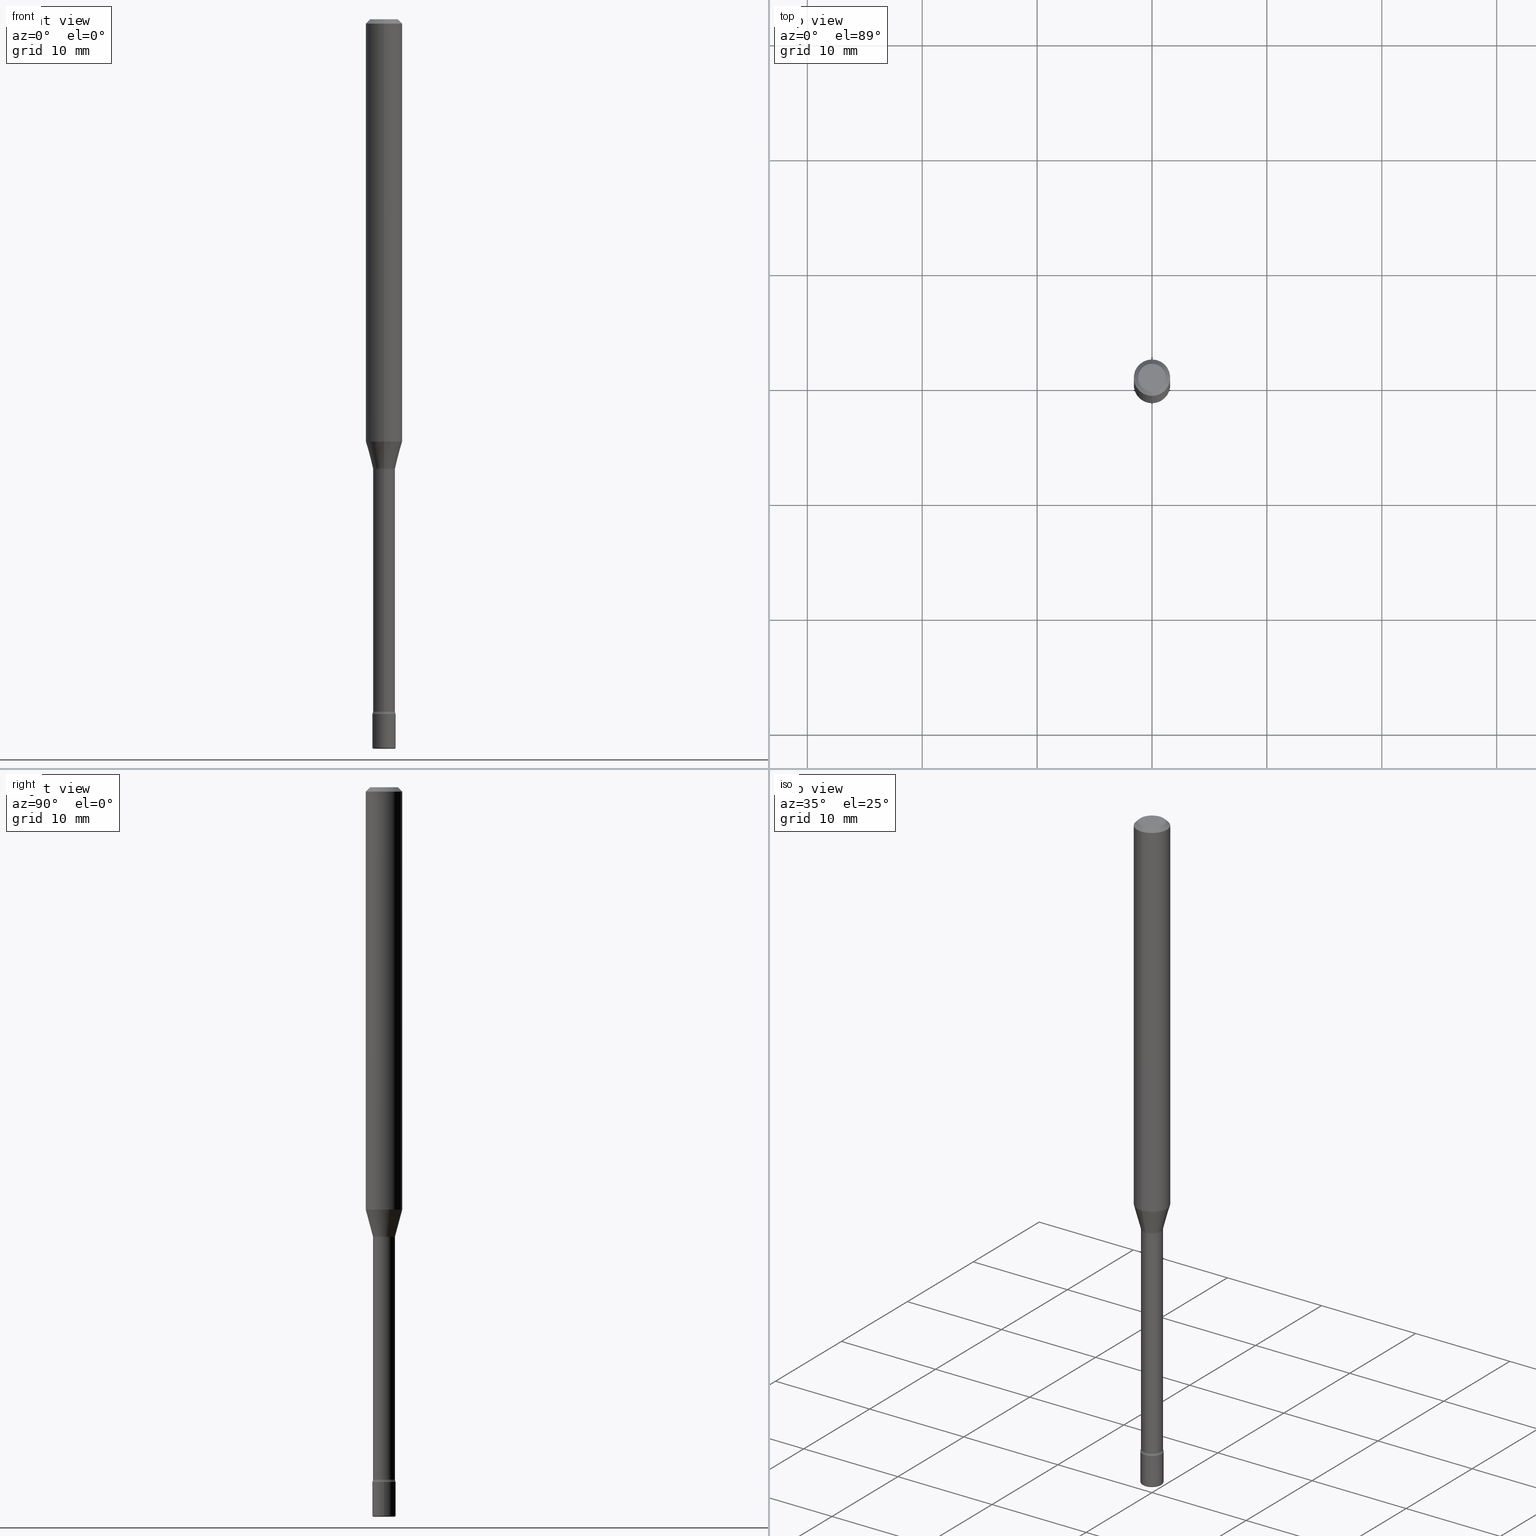
[diagram: canonical four-view strip — front | top / right | iso, engineering-drawing reading convention]
A machine part, canonical four-view strip (front | top / right | iso — engineering-drawing reading convention). The complete STEP part file that produces these views, byte-faithful:
ISO-10303-21;
HEADER;
FILE_DESCRIPTION (( 'STEP AP203' ),
    '1' );
FILE_NAME ('08841.STEP',
    '2024-03-06T20:05:06',
    ( '' ),
    ( '' ),
    'SwSTEP 2.0',
    'SolidWorks 2023',
    '' );
FILE_SCHEMA (( 'CONFIG_CONTROL_DESIGN' ));
ENDSEC;

DATA;
#1 = LOCAL_TIME ( 15, 5, 6.000000000000000000, #359 ) ;
#2 = DIRECTION ( 'NONE',  ( 2.438088387897960049E-29, -3.491481338843145188E-15, -1.000000000000000000 ) ) ;
#3 = ORIENTED_EDGE ( 'NONE', *, *, #93, .F. ) ;
#4 = AXIS2_PLACEMENT_3D ( 'NONE', #111, #146, #17 ) ;
#5 = CIRCLE ( 'NONE', #49, 0.03811111260566397985 ) ;
#6 = CC_DESIGN_SECURITY_CLASSIFICATION ( #23, ( #70 ) ) ;
#7 = DIRECTION ( 'NONE',  ( -2.445371158952634318E-29, 3.491621175237824120E-15, 1.000000000000000000 ) ) ;
#8 = LINE ( 'NONE', #483, #297 ) ;
#9 = DIRECTION ( 'NONE',  ( -2.445371158952634038E-29, 3.491621175237824120E-15, 1.000000000000000000 ) ) ;
#10 = CALENDAR_DATE ( 2024, 6, 3 ) ;
#11 = EDGE_CURVE ( 'NONE', #177, #96, #439, .T. ) ;
#12 = DIRECTION ( 'NONE',  ( 7.105427357601001859E-15, 1.000000000000000000, -3.491481338843145583E-15 ) ) ;
#13 = APPROVAL ( #148, 'UNSPECIFIED' ) ;
#14 = ORIENTED_EDGE ( 'NONE', *, *, #81, .T. ) ;
#15 = AXIS2_PLACEMENT_3D ( 'NONE', #138, #99, #444 ) ;
#16 = AXIS2_PLACEMENT_3D ( 'NONE', #207, #266, #38 ) ;
#17 = DIRECTION ( 'NONE',  ( 1.000000000000000000, -6.982962677686276966E-15, 0.000000000000000000 ) ) ;
#18 = ORIENTED_EDGE ( 'NONE', *, *, #377, .T. ) ;
#19 = CARTESIAN_POINT ( 'NONE',  ( 3.840629472727447874E-16, 0.04750000000000000749, -1.929345507921888929E-16 ) ) ;
#20 = EDGE_LOOP ( 'NONE', ( #423, #118, #354, #522 ) ) ;
#21 = ADVANCED_FACE ( 'NONE', ( #512 ), #149, .F. ) ;
#22 = FACE_OUTER_BOUND ( 'NONE', #420, .T. ) ;
#23 = SECURITY_CLASSIFICATION ( '', '', #408 ) ;
#24 = CC_DESIGN_DATE_AND_TIME_ASSIGNMENT ( #236, #488, ( #23 ) ) ;
#25 = CIRCLE ( 'NONE', #289, 0.04000000000000000083 ) ;
#26 = DIRECTION ( 'NONE',  ( -6.982962677686265922E-15, -1.000000000000000000, 6.829619984160658243E-15 ) ) ;
#27 = ADVANCED_FACE ( 'NONE', ( #569 ), #87, .T. ) ;
#28 = VERTEX_POINT ( 'NONE', #46 ) ;
#29 = AXIS2_PLACEMENT_3D ( 'NONE', #481, #340, #521 ) ;
#30 = AXIS2_PLACEMENT_3D ( 'NONE', #243, #158, #368 ) ;
#31 = ORIENTED_EDGE ( 'NONE', *, *, #267, .F. ) ;
#32 = DIRECTION ( 'NONE',  ( -2.445371158952634318E-29, 3.491621175237824120E-15, 1.000000000000000000 ) ) ;
#33 = ORIENTED_EDGE ( 'NONE', *, *, #468, .F. ) ;
#34 = DIRECTION ( 'NONE',  ( -6.982962677686265922E-15, -1.000000000000000000, 4.370956789862821150E-15 ) ) ;
#35 = ADVANCED_FACE ( 'NONE', ( #345 ), #343, .T. ) ;
#36 = VERTEX_POINT ( 'NONE', #95 ) ;
#37 = ORIENTED_EDGE ( 'NONE', *, *, #471, .T. ) ;
#38 = DIRECTION ( 'NONE',  ( 1.000000000000000000, -6.982962677686265922E-15, 4.876176775795935793E-29 ) ) ;
#39 = DIRECTION ( 'NONE',  ( -2.445371158952634318E-29, 3.491621175237824120E-15, 1.000000000000000000 ) ) ;
#40 = ORIENTED_EDGE ( 'NONE', *, *, #200, .F. ) ;
#41 = PLANE ( 'NONE',  #535 ) ;
#42 = LINE ( 'NONE', #263, #485 ) ;
#43 = ORIENTED_EDGE ( 'NONE', *, *, #182, .F. ) ;
#44 = APPLICATION_PROTOCOL_DEFINITION ( 'international standard', 'config_control_design', 1994, #322 ) ;
#45 = EDGE_CURVE ( 'NONE', #123, #375, #553, .T. ) ;
#46 = CARTESIAN_POINT ( 'NONE',  ( 2.842170943040980615E-16, 0.03999999999999167416, -2.380000000000000338 ) ) ;
#47 = VERTEX_POINT ( 'NONE', #527 ) ;
#48 = CARTESIAN_POINT ( 'NONE',  ( -4.364351673553565651E-16, -0.06250000000000509315, -1.447071934891535072 ) ) ;
#49 = AXIS2_PLACEMENT_3D ( 'NONE', #101, #321, #66 ) ;
#50 = CARTESIAN_POINT ( 'NONE',  ( 5.800312587032241644E-29, -8.281309132162736146E-15, -2.371861204020250025 ) ) ;
#51 = DIRECTION ( 'NONE',  ( 0.000000000000000000, 0.000000000000000000, 1.000000000000000000 ) ) ;
#52 = MANIFOLD_SOLID_BREP ( 'Body-Move/Copy2[2]', #381 ) ;
#53 = CARTESIAN_POINT ( 'NONE',  ( -0.03999999999999989675, -8.427028846109609580E-15, -2.495000000000000107 ) ) ;
#54 = APPROVAL_ROLE ( '' ) ;
#55 = DIRECTION ( 'NONE',  ( 1.839019923739600710E-15, 0.2588190451025250138, 0.9659258262890670910 ) ) ;
#56 = DIRECTION ( 'NONE',  ( -2.445371158952634038E-29, 3.491621175237824120E-15, 1.000000000000000000 ) ) ;
#57 = AXIS2_PLACEMENT_3D ( 'NONE', #104, #231, #186 ) ;
#58 = AXIS2_PLACEMENT_3D ( 'NONE', #550, #32, #34 ) ;
#59 = UNCERTAINTY_MEASURE_WITH_UNIT (LENGTH_MEASURE( 1.000000000000000082E-05 ), #131, 'distance_accuracy_value', 'NONE');
#60 = CARTESIAN_POINT ( 'NONE',  ( -0.03500000000000000333, -8.453521117850718435E-15, -2.499999999999999556 ) ) ;
#61 = ORIENTED_EDGE ( 'NONE', *, *, #385, .T. ) ;
#62 = EDGE_CURVE ( 'NONE', #123, #68, #393, .T. ) ;
#63 = FACE_OUTER_BOUND ( 'NONE', #462, .T. ) ;
#64 = CARTESIAN_POINT ( 'NONE',  ( 5.820215758720625190E-29, -8.309725586446686731E-15, -2.379999999999999893 ) ) ;
#65 = PERSON_AND_ORGANIZATION_ROLE ( 'classification_officer' ) ;
#66 = DIRECTION ( 'NONE',  ( -6.982962677686266711E-15, -1.000000000000000000, 0.000000000000000000 ) ) ;
#67 = DIRECTION ( 'NONE',  ( -6.982962677686265922E-15, -1.000000000000000000, 0.000000000000000000 ) ) ;
#68 = VERTEX_POINT ( 'NONE', #532 ) ;
#69 = LINE ( 'NONE', #279, #318 ) ;
#70 = PRODUCT_DEFINITION_FORMATION_WITH_SPECIFIED_SOURCE ( 'ANY', '', #122, .NOT_KNOWN. ) ;
#71 = VECTOR ( 'NONE', #489, 39.37007874015748143 ) ;
#72 = CONICAL_SURFACE ( 'NONE', #525, 0.06250000000000000000, 0.7853981633974480570 ) ;
#73 = DIRECTION ( 'NONE',  ( -2.445371158952634318E-29, 3.491621175237824120E-15, 1.000000000000000000 ) ) ;
#74 = ORIENTED_EDGE ( 'NONE', *, *, #350, .T. ) ;
#75 = EDGE_CURVE ( 'NONE', #375, #460, #333, .T. ) ;
#76 = DIRECTION ( 'NONE',  ( -6.982962677686266711E-15, -1.000000000000000000, 3.491481338843145583E-15 ) ) ;
#77 = ORIENTED_EDGE ( 'NONE', *, *, #434, .T. ) ;
#78 = AXIS2_PLACEMENT_3D ( 'NONE', #80, #76, #250 ) ;
#79 = ORIENTED_EDGE ( 'NONE', *, *, #350, .F. ) ;
#80 = CARTESIAN_POINT ( 'NONE',  ( 0.03500000000000000333, -8.955649634132666717E-15, -2.495000000000000107 ) ) ;
#81 = EDGE_CURVE ( 'NONE', #416, #499, #502, .T. ) ;
#82 = ORIENTED_EDGE ( 'NONE', *, *, #459, .T. ) ;
#83 = FACE_OUTER_BOUND ( 'NONE', #378, .T. ) ;
#84 = ORIENTED_EDGE ( 'NONE', *, *, #154, .F. ) ;
#85 = CARTESIAN_POINT ( 'NONE',  ( 3.316907271900976589E-16, 0.04750000000000000749, 5.964342113763027116E-17 ) ) ;
#86 = VECTOR ( 'NONE', #55, 39.37007874015748143 ) ;
#87 = CYLINDRICAL_SURFACE ( 'NONE', #555, 0.06250000000000000000 ) ;
#88 = AXIS2_PLACEMENT_3D ( 'NONE', #312, #56, #491 ) ;
#89 = DIRECTION ( 'NONE',  ( -6.982962677686265922E-15, -1.000000000000000000, 3.491621175237824120E-15 ) ) ;
#90 = DIRECTION ( 'NONE',  ( -1.000000000000000000, 6.982962677686265922E-15, -4.883557194083112340E-29 ) ) ;
#91 = ORIENTED_EDGE ( 'NONE', *, *, #463, .F. ) ;
#92 = LINE ( 'NONE', #202, #382 ) ;
#93 = EDGE_CURVE ( 'NONE', #96, #177, #247, .T. ) ;
#94 = APPROVAL_PERSON_ORGANIZATION ( #544, #484, #54 ) ;
#95 = CARTESIAN_POINT ( 'NONE',  ( 4.440892098500982135E-16, 0.06249999999999995143, -0.01500000000000024578 ) ) ;
#96 = VERTEX_POINT ( 'NONE', #221 ) ;
#97 = CARTESIAN_POINT ( 'NONE',  ( 4.364351673553919652E-16, 0.06249999999999995143, -0.01500000000000024578 ) ) ;
#98 = CONICAL_SURFACE ( 'NONE', #57, 0.03811111260566397985, 0.2617993877991502960 ) ;
#99 = DIRECTION ( 'NONE',  ( -2.445371158952634318E-29, 3.491621175237824120E-15, 1.000000000000000000 ) ) ;
#100 = PERSON_AND_ORGANIZATION_ROLE ( 'design_supplier' ) ;
#101 = CARTESIAN_POINT ( 'NONE',  ( 3.761207043671900730E-29, -5.370436348714963355E-15, -1.538092501787273081 ) ) ;
#102 = CARTESIAN_POINT ( 'NONE',  ( 5.820215758720625190E-29, -8.309725586446686731E-15, -2.379999999999999893 ) ) ;
#103 = APPROVAL_DATE_TIME ( #311, #205 ) ;
#104 = CARTESIAN_POINT ( 'NONE',  ( 3.761207043671900730E-29, -5.370436348714963355E-15, -1.538092501787273081 ) ) ;
#105 = PERSON_AND_ORGANIZATION ( #477, #392 ) ;
#106 = CARTESIAN_POINT ( 'NONE',  ( -4.287811248607203282E-16, -0.06250000000000005551, -0.01499999999999981036 ) ) ;
#107 = LOCAL_TIME ( 15, 5, 6.000000000000000000, #187 ) ;
#108 = DIRECTION ( 'NONE',  ( -2.445371158952634318E-29, 3.491621175237824120E-15, 1.000000000000000000 ) ) ;
#109 = ORIENTED_EDGE ( 'NONE', *, *, #237, .T. ) ;
#110 = DATE_TIME_ROLE ( 'creation_date' ) ;
#111 = CARTESIAN_POINT ( 'NONE',  ( 6.113672015462840371E-29, -8.728703347107863365E-15, -2.499999999999999556 ) ) ;
#112 = DIRECTION ( 'NONE',  ( -1.000000000000000000, 6.982962677686265922E-15, -4.883557194083112340E-29 ) ) ;
#113 = ORIENTED_EDGE ( 'NONE', *, *, #385, .F. ) ;
#114 = APPLICATION_CONTEXT ( 'configuration controlled 3d designs of mechanical parts and assemblies' ) ;
#115 = CC_DESIGN_DATE_AND_TIME_ASSIGNMENT ( #275, #110, ( #415 ) ) ;
#116 = AXIS2_PLACEMENT_3D ( 'NONE', #255, #90, #519 ) ;
#117 = AXIS2_PLACEMENT_3D ( 'NONE', #414, #558, #246 ) ;
#118 = ORIENTED_EDGE ( 'NONE', *, *, #425, .T. ) ;
#119 = VERTEX_POINT ( 'NONE', #125 ) ;
#120 = ORIENTED_EDGE ( 'NONE', *, *, #564, .F. ) ;
#121 =( GEOMETRIC_REPRESENTATION_CONTEXT ( 3 ) GLOBAL_UNCERTAINTY_ASSIGNED_CONTEXT ( ( #59 ) ) GLOBAL_UNIT_ASSIGNED_CONTEXT ( ( #131, #388, #523 ) ) REPRESENTATION_CONTEXT ( 'NONE', 'WORKASPACE' ) );
#122 = PRODUCT ( '08841', '08841', '', ( #317 ) ) ;
#123 = VERTEX_POINT ( 'NONE', #473 ) ;
#124 = CARTESIAN_POINT ( 'NONE',  ( 3.668056738428958326E-31, -5.237431762856745967E-17, -0.01500000000000002720 ) ) ;
#125 = CARTESIAN_POINT ( 'NONE',  ( 0.03500000000000000333, -8.973107040826881753E-15, -2.499999999999999556 ) ) ;
#126 = CC_DESIGN_PERSON_AND_ORGANIZATION_ASSIGNMENT ( #398, #65, ( #23 ) ) ;
#127 = ADVANCED_FACE ( 'NONE', ( #300 ), #571, .T. ) ;
#128 = AXIS2_PLACEMENT_3D ( 'NONE', #454, #406, #446 ) ;
#129 = AXIS2_PLACEMENT_3D ( 'NONE', #507, #505, #418 ) ;
#130 = FACE_OUTER_BOUND ( 'NONE', #482, .T. ) ;
#131 =( CONVERSION_BASED_UNIT ( 'INCH', #474 ) LENGTH_UNIT ( ) NAMED_UNIT ( #163 ) );
#132 = DIRECTION ( 'NONE',  ( 1.000000000000000000, -6.982962677686282488E-15, 0.000000000000000000 ) ) ;
#133 = CARTESIAN_POINT ( 'NONE',  ( -0.04000000000000000083, -8.226268669126126415E-15, -2.379999999999999893 ) ) ;
#134 = CARTESIAN_POINT ( 'NONE',  ( 3.668056738428958326E-31, -5.237431762856745967E-17, -0.01500000000000002720 ) ) ;
#135 = ADVANCED_FACE ( 'NONE', ( #130 ), #372, .F. ) ;
#136 = ORIENTED_EDGE ( 'NONE', *, *, #62, .T. ) ;
#137 = FACE_OUTER_BOUND ( 'NONE', #249, .T. ) ;
#138 = CARTESIAN_POINT ( 'NONE',  ( -1.169113584055446105E-44, 1.669184350826100908E-30, 4.780733988912460139E-16 ) ) ;
#139 = APPROVAL_ROLE ( '' ) ;
#140 = AXIS2_PLACEMENT_3D ( 'NONE', #348, #292, #396 ) ;
#141 = ADVANCED_FACE ( 'NONE', ( #395 ), #212, .F. ) ;
#142 = FACE_OUTER_BOUND ( 'NONE', #287, .T. ) ;
#143 = ORIENTED_EDGE ( 'NONE', *, *, #377, .F. ) ;
#144 = DIRECTION ( 'NONE',  ( -2.445371158952634318E-29, 3.491621175237824120E-15, 1.000000000000000000 ) ) ;
#145 = DATE_AND_TIME ( #447, #215 ) ;
#146 = DIRECTION ( 'NONE',  ( -2.445468806185136597E-29, 3.491481338843145583E-15, 1.000000000000000000 ) ) ;
#147 = ORIENTED_EDGE ( 'NONE', *, *, #261, .T. ) ;
#148 = APPROVAL_STATUS ( 'not_yet_approved' ) ;
#149 = TOROIDAL_SURFACE ( 'NONE', #534, 0.05260000000000002174, 0.01499999999999996822 ) ;
#150 = CARTESIAN_POINT ( 'NONE',  ( -3.673038368462397802E-16, -0.05260000000000830678, -2.371861204020249581 ) ) ;
#151 = VERTEX_POINT ( 'NONE', #433 ) ;
#152 = PERSON_AND_ORGANIZATION ( #477, #392 ) ;
#153 = DIRECTION ( 'NONE',  ( -6.982962677686265922E-15, -1.000000000000000000, 3.483106191921935554E-15 ) ) ;
#154 = EDGE_CURVE ( 'NONE', #437, #375, #42, .T. ) ;
#155 = ORIENTED_EDGE ( 'NONE', *, *, #561, .F. ) ;
#156 = AXIS2_PLACEMENT_3D ( 'NONE', #64, #356, #235 ) ;
#157 = ORIENTED_EDGE ( 'NONE', *, *, #455, .F. ) ;
#158 = DIRECTION ( 'NONE',  ( -2.445371158952634318E-29, 3.491621175237824120E-15, 1.000000000000000000 ) ) ;
#159 = ADVANCED_FACE ( 'NONE', ( #174 ), #487, .T. ) ;
#160 = ORIENTED_EDGE ( 'NONE', *, *, #455, .T. ) ;
#161 = CARTESIAN_POINT ( 'NONE',  ( 5.820215758720625190E-29, -8.309725586446686731E-15, -2.379999999999999893 ) ) ;
#162 = DIRECTION ( 'NONE',  ( -2.445468806185136597E-29, 3.491481338843145583E-15, 1.000000000000000000 ) ) ;
#163 = DIMENSIONAL_EXPONENTS ( 1.000000000000000000, 0.000000000000000000, 0.000000000000000000, 0.000000000000000000, 0.000000000000000000, 0.000000000000000000, 0.000000000000000000 ) ;
#164 = AXIS2_PLACEMENT_3D ( 'NONE', #217, #342, #438 ) ;
#165 = ORIENTED_EDGE ( 'NONE', *, *, #75, .F. ) ;
#166 = DIRECTION ( 'NONE',  ( -2.445371158952634318E-29, 3.491621175237824120E-15, 1.000000000000000000 ) ) ;
#167 = DIRECTION ( 'NONE',  ( 6.982962677686265922E-15, 1.000000000000000000, -3.483106191921935554E-15 ) ) ;
#168 = DIRECTION ( 'NONE',  ( 2.445371158952634318E-29, -3.491621175237824120E-15, -1.000000000000000000 ) ) ;
#169 = CARTESIAN_POINT ( 'NONE',  ( 6.101444671431915719E-29, -8.711245940413648329E-15, -2.495000000000000107 ) ) ;
#170 = ORIENTED_EDGE ( 'NONE', *, *, #81, .F. ) ;
#171 = AXIS2_PLACEMENT_3D ( 'NONE', #150, #112, #543 ) ;
#172 = CARTESIAN_POINT ( 'NONE',  ( 3.538627974513544644E-29, -5.052627009959655256E-15, -1.447071934891535294 ) ) ;
#173 = ADVANCED_FACE ( 'NONE', ( #347 ), #349, .T. ) ;
#174 = FACE_OUTER_BOUND ( 'NONE', #467, .T. ) ;
#175 = FACE_OUTER_BOUND ( 'NONE', #329, .T. ) ;
#176 = DIRECTION ( 'NONE',  ( -1.000000000000000000, 6.982962677686265922E-15, -4.876176775795935793E-29 ) ) ;
#177 = VERTEX_POINT ( 'NONE', #53 ) ;
#178 = COORDINATED_UNIVERSAL_TIME_OFFSET ( 5, 0, .BEHIND. ) ;
#179 = CARTESIAN_POINT ( 'NONE',  ( -4.364351673553916201E-16, -0.06250000000000000000, 6.962997223436100461E-16 ) ) ;
#180 = AXIS2_PLACEMENT_3D ( 'NONE', #386, #389, #478 ) ;
#181 = CONICAL_SURFACE ( 'NONE', #30, 0.03811111260566397985, 0.2617993877991502960 ) ;
#182 = EDGE_CURVE ( 'NONE', #219, #437, #238, .T. ) ;
#183 = CARTESIAN_POINT ( 'NONE',  ( 2.707957421369348639E-16, 0.03811111260565861608, -1.538092501787273081 ) ) ;
#184 = DIRECTION ( 'NONE',  ( -2.445371158952634318E-29, 3.491621175237824120E-15, 1.000000000000000000 ) ) ;
#185 = CALENDAR_DATE ( 2024, 6, 3 ) ;
#186 = DIRECTION ( 'NONE',  ( -6.982962677686266711E-15, -1.000000000000000000, 0.000000000000000000 ) ) ;
#187 = COORDINATED_UNIVERSAL_TIME_OFFSET ( 5, 0, .BEHIND. ) ;
#188 = AXIS2_PLACEMENT_3D ( 'NONE', #562, #162, #332 ) ;
#189 = VECTOR ( 'NONE', #449, 39.37007874015748143 ) ;
#190 = LOCAL_TIME ( 15, 5, 6.000000000000000000, #178 ) ;
#191 = CARTESIAN_POINT ( 'NONE',  ( -2.625593966809659350E-16, -0.03760000000000538606, -1.541974787463811003 ) ) ;
#192 = CYLINDRICAL_SURFACE ( 'NONE', #458, 0.03760000000000002923 ) ;
#193 = ORIENTED_EDGE ( 'NONE', *, *, #240, .T. ) ;
#194 = CIRCLE ( 'NONE', #171, 0.01499999999999996822 ) ;
#195 = EDGE_CURVE ( 'NONE', #96, #151, #316, .T. ) ;
#196 = CIRCLE ( 'NONE', #204, 0.04000000000000000083 ) ;
#197 = ORIENTED_EDGE ( 'NONE', *, *, #367, .F. ) ;
#198 = CARTESIAN_POINT ( 'NONE',  ( 3.668056738428958326E-31, -5.237431762856745967E-17, -0.01500000000000002720 ) ) ;
#199 = ORIENTED_EDGE ( 'NONE', *, *, #11, .T. ) ;
#200 = EDGE_CURVE ( 'NONE', #68, #416, #498, .T. ) ;
#201 = VERTEX_POINT ( 'NONE', #19 ) ;
#202 = CARTESIAN_POINT ( 'NONE',  ( -0.04000000000000000083, 2.842170943040400803E-16, -1.967574036101962509E-30 ) ) ;
#203 = CLOSED_SHELL ( 'NONE', ( #508, #305, #331, #159, #549, #127 ) ) ;
#204 = AXIS2_PLACEMENT_3D ( 'NONE', #362, #320, #26 ) ;
#205 = APPROVAL ( #452, 'UNSPECIFIED' ) ;
#206 = EDGE_LOOP ( 'NONE', ( #113, #193, #18, #504 ) ) ;
#207 = CARTESIAN_POINT ( 'NONE',  ( 0.000000000000000000, 0.000000000000000000, 0.000000000000000000 ) ) ;
#208 = DIRECTION ( 'NONE',  ( 2.445371158952634318E-29, -3.491621175237824120E-15, -1.000000000000000000 ) ) ;
#209 = ORIENTED_EDGE ( 'NONE', *, *, #394, .T. ) ;
#210 =( LENGTH_UNIT ( ) NAMED_UNIT ( * ) SI_UNIT ( $, .METRE. ) );
#211 = CARTESIAN_POINT ( 'NONE',  ( 2.444036937190804617E-16, 0.03499999999999127420, -2.500000000000000000 ) ) ;
#212 = TOROIDAL_SURFACE ( 'NONE', #411, 0.05260000000000002174, 0.01499999999999996822 ) ;
#213 = AXIS2_PLACEMENT_3D ( 'NONE', #548, #500, #283 ) ;
#214 = DIRECTION ( 'NONE',  ( -6.982962677686265922E-15, -1.000000000000000000, 3.491621175237824120E-15 ) ) ;
#215 = LOCAL_TIME ( 15, 5, 6.000000000000000000, #496 ) ;
#216 = ORIENTED_EDGE ( 'NONE', *, *, #461, .F. ) ;
#217 = CARTESIAN_POINT ( 'NONE',  ( 5.819983358307269654E-29, -8.310058397066021462E-15, -2.379999999999999893 ) ) ;
#218 = DIRECTION ( 'NONE',  ( -2.445371158952634318E-29, 3.491621175237824120E-15, 1.000000000000000000 ) ) ;
#219 = VERTEX_POINT ( 'NONE', #353 ) ;
#220 = APPLICATION_PROTOCOL_DEFINITION ( 'international standard', 'config_control_design', 1994, #114 ) ;
#221 = CARTESIAN_POINT ( 'NONE',  ( 0.03999999999999989675, -8.990564447521098367E-15, -2.495000000000000107 ) ) ;
#222 = APPROVAL_DATE_TIME ( #443, #484 ) ;
#223 = EDGE_CURVE ( 'NONE', #506, #36, #565, .T. ) ;
#224 = DIRECTION ( 'NONE',  ( -2.445371158952634038E-29, 3.491621175237824120E-15, 1.000000000000000000 ) ) ;
#225 = CYLINDRICAL_SURFACE ( 'NONE', #556, 0.06250000000000000000 ) ;
#226 = CC_DESIGN_PERSON_AND_ORGANIZATION_ASSIGNMENT ( #227, #100, ( #70 ) ) ;
#227 = PERSON_AND_ORGANIZATION ( #477, #392 ) ;
#228 = AXIS2_PLACEMENT_3D ( 'NONE', #495, #12, #270 ) ;
#229 = CIRCLE ( 'NONE', #352, 0.03760000000000005699 ) ;
#230 = EDGE_CURVE ( 'NONE', #528, #151, #401, .T. ) ;
#231 = DIRECTION ( 'NONE',  ( -2.445371158952634318E-29, 3.491621175237824120E-15, 1.000000000000000000 ) ) ;
#232 = APPROVAL_STATUS ( 'not_yet_approved' ) ;
#233 = ORIENTED_EDGE ( 'NONE', *, *, #427, .F. ) ;
#234 = DIRECTION ( 'NONE',  ( -4.851104656540962697E-15, -0.7071067811865497932, -0.7071067811865452413 ) ) ;
#235 = DIRECTION ( 'NONE',  ( 1.000000000000000000, -6.982962677686265922E-15, 4.876176775795935793E-29 ) ) ;
#236 = DATE_AND_TIME ( #314, #1 ) ;
#237 = EDGE_CURVE ( 'NONE', #310, #177, #419, .T. ) ;
#238 = CIRCLE ( 'NONE', #325, 0.03760000000000005699 ) ;
#239 = APPROVAL_PERSON_ORGANIZATION ( #351, #13, #139 ) ;
#240 = EDGE_CURVE ( 'NONE', #68, #460, #524, .T. ) ;
#241 = ORIENTED_EDGE ( 'NONE', *, *, #459, .F. ) ;
#242 = ORIENTED_EDGE ( 'NONE', *, *, #45, .T. ) ;
#243 = CARTESIAN_POINT ( 'NONE',  ( 3.761207043671900730E-29, -5.370436348714963355E-15, -1.538092501787273081 ) ) ;
#244 = MANIFOLD_SOLID_BREP ( 'Body-Move/Copy2[1]', #203 ) ;
#245 = ORIENTED_EDGE ( 'NONE', *, *, #200, .T. ) ;
#246 = DIRECTION ( 'NONE',  ( 1.000000000000000000, -6.982962677686276966E-15, 0.000000000000000000 ) ) ;
#247 = CIRCLE ( 'NONE', #295, 0.04000000000000000777 ) ;
#248 = AXIS2_PLACEMENT_3D ( 'NONE', #457, #73, #399 ) ;
#249 = EDGE_LOOP ( 'NONE', ( #82, #566 ) ) ;
#250 = DIRECTION ( 'NONE',  ( 1.000000000000000000, -6.982962677686451304E-15, 0.000000000000000000 ) ) ;
#251 = ORIENTED_EDGE ( 'NONE', *, *, #520, .T. ) ;
#252 = ORIENTED_EDGE ( 'NONE', *, *, #237, .F. ) ;
#253 = DIRECTION ( 'NONE',  ( -1.807323732225330534E-15, -0.2588190451025182415, 0.9659258262890689783 ) ) ;
#254 = AXIS2_PLACEMENT_3D ( 'NONE', #172, #441, #337 ) ;
#255 = CARTESIAN_POINT ( 'NONE',  ( -3.673038368462599455E-16, -0.05260000000000539244, -1.541974787463810781 ) ) ;
#256 = FACE_OUTER_BOUND ( 'NONE', #20, .T. ) ;
#257 = DIRECTION ( 'NONE',  ( -2.445371158952634318E-29, 3.491621175237824120E-15, 1.000000000000000000 ) ) ;
#258 = CARTESIAN_POINT ( 'NONE',  ( 3.761207043671900730E-29, -5.370436348714963355E-15, -1.538092501787273081 ) ) ;
#259 = ORIENTED_EDGE ( 'NONE', *, *, #425, .F. ) ;
#260 = DIRECTION ( 'NONE',  ( -2.445468806185136877E-29, 3.491481338843145188E-15, 1.000000000000000000 ) ) ;
#261 = EDGE_CURVE ( 'NONE', #437, #47, #194, .T. ) ;
#262 = CIRCLE ( 'NONE', #117, 0.03500000000000000333 ) ;
#263 = CARTESIAN_POINT ( 'NONE',  ( -2.625593966810038003E-16, -0.03760000000000002923, 6.093583550801884071E-16 ) ) ;
#264 = CC_DESIGN_APPROVAL ( #484, ( #23 ) ) ;
#265 = EDGE_LOOP ( 'NONE', ( #259, #241, #299, #285 ) ) ;
#266 = DIRECTION ( 'NONE',  ( -2.445468806185136597E-29, 3.491481338843145583E-15, 1.000000000000000000 ) ) ;
#267 = EDGE_CURVE ( 'NONE', #310, #119, #494, .T. ) ;
#268 = CARTESIAN_POINT ( 'NONE',  ( -1.169113584055446105E-44, 1.669184350826100908E-30, 4.780733988912460139E-16 ) ) ;
#269 = COORDINATED_UNIVERSAL_TIME_OFFSET ( 5, 0, .BEHIND. ) ;
#270 = DIRECTION ( 'NONE',  ( -1.000000000000000000, 7.105427357601049190E-15, 0.000000000000000000 ) ) ;
#271 = ORIENTED_EDGE ( 'NONE', *, *, #564, .T. ) ;
#272 = CARTESIAN_POINT ( 'NONE',  ( 4.440892098500976219E-16, 0.06249999999999491379, -1.447071934891535516 ) ) ;
#273 = AXIS2_PLACEMENT_3D ( 'NONE', #134, #208, #167 ) ;
#274 = CARTESIAN_POINT ( 'NONE',  ( 0.04000000000000000083, -2.793185071074506290E-16, 1.950470710318374387E-30 ) ) ;
#275 = DATE_AND_TIME ( #185, #276 ) ;
#276 = LOCAL_TIME ( 15, 5, 6.000000000000000000, #269 ) ;
#277 = DIRECTION ( 'NONE',  ( -6.982962677686265922E-15, -1.000000000000000000, 3.491621175237823726E-15 ) ) ;
#278 = APPROVAL_ROLE ( '' ) ;
#279 = CARTESIAN_POINT ( 'NONE',  ( 2.671640686457978776E-16, 0.03760000000000002923, 3.467884427023037687E-16 ) ) ;
#280 = DIRECTION ( 'NONE',  ( -2.445468806185136597E-29, 3.491481338843145583E-15, 1.000000000000000000 ) ) ;
#281 = ORIENTED_EDGE ( 'NONE', *, *, #427, .T. ) ;
#282 = ADVANCED_FACE ( 'NONE', ( #142 ), #225, .T. ) ;
#283 = DIRECTION ( 'NONE',  ( -6.982962677686265922E-15, -1.000000000000000000, 0.000000000000000000 ) ) ;
#284 = AXIS2_PLACEMENT_3D ( 'NONE', #391, #166, #346 ) ;
#285 = ORIENTED_EDGE ( 'NONE', *, *, #463, .T. ) ;
#286 = ORIENTED_EDGE ( 'NONE', *, *, #75, .T. ) ;
#287 = EDGE_LOOP ( 'NONE', ( #516, #14, #74, #91 ) ) ;
#288 = CARTESIAN_POINT ( 'NONE',  ( -1.169113584055446105E-44, 1.669184350826100908E-30, 4.780733988912460139E-16 ) ) ;
#289 = AXIS2_PLACEMENT_3D ( 'NONE', #161, #330, #517 ) ;
#290 = EDGE_LOOP ( 'NONE', ( #252, #303, #77, #291 ) ) ;
#291 = ORIENTED_EDGE ( 'NONE', *, *, #11, .F. ) ;
#292 = DIRECTION ( 'NONE',  ( -2.445468806185136597E-29, 3.491481338843145583E-15, 1.000000000000000000 ) ) ;
#293 = DIRECTION ( 'NONE',  ( -2.445371158952634318E-29, 3.491621175237824120E-15, 1.000000000000000000 ) ) ;
#294 = LINE ( 'NONE', #97, #364 ) ;
#295 = AXIS2_PLACEMENT_3D ( 'NONE', #169, #530, #132 ) ;
#296 = TOROIDAL_SURFACE ( 'NONE', #334, 0.03500000000000000333, 0.004999999999999771988 ) ;
#297 = VECTOR ( 'NONE', #253, 39.37007874015748143 ) ;
#298 = CARTESIAN_POINT ( 'NONE',  ( 3.770851242666705328E-29, -5.383776195396521708E-15, -1.541974787463811003 ) ) ;
#299 = ORIENTED_EDGE ( 'NONE', *, *, #570, .T. ) ;
#300 = FACE_OUTER_BOUND ( 'NONE', #464, .T. ) ;
#301 = DIRECTION ( 'NONE',  ( 6.982962677686265922E-15, 1.000000000000000000, -3.491621175237824120E-15 ) ) ;
#302 = DIRECTION ( 'NONE',  ( -6.982962677686265922E-15, -1.000000000000000000, 3.491621175237823726E-15 ) ) ;
#303 = ORIENTED_EDGE ( 'NONE', *, *, #267, .T. ) ;
#304 = CARTESIAN_POINT ( 'NONE',  ( 5.800080981349790489E-29, -8.281640804682186145E-15, -2.371861204020250025 ) ) ;
#305 = ADVANCED_FACE ( 'NONE', ( #451 ), #296, .T. ) ;
#306 = CIRCLE ( 'NONE', #164, 0.04000000000000000083 ) ;
#307 = CARTESIAN_POINT ( 'NONE',  ( 5.800312587032241644E-29, -8.281309132162736146E-15, -2.371861204020250025 ) ) ;
#308 = APPROVAL_DATE_TIME ( #145, #13 ) ;
#309 = CARTESIAN_POINT ( 'NONE',  ( -1.169113584055446105E-44, 1.669184350826100908E-30, 4.780733988912460139E-16 ) ) ;
#310 = VERTEX_POINT ( 'NONE', #60 ) ;
#311 = DATE_AND_TIME ( #10, #190 ) ;
#312 = CARTESIAN_POINT ( 'NONE',  ( 2.793185071075088075E-16, 0.03999999999999169498, -2.380000000000000338 ) ) ;
#313 = CARTESIAN_POINT ( 'NONE',  ( 5.800080981349790489E-29, -8.281640804682186145E-15, -2.371861204020250025 ) ) ;
#314 = CALENDAR_DATE ( 2024, 6, 3 ) ;
#315 = AXIS2_PLACEMENT_3D ( 'NONE', #298, #436, #214 ) ;
#316 = LINE ( 'NONE', #274, #71 ) ;
#317 = MECHANICAL_CONTEXT ( 'NONE', #322, 'mechanical' ) ;
#318 = VECTOR ( 'NONE', #224, 39.37007874015748143 ) ;
#319 = CARTESIAN_POINT ( 'NONE',  ( -3.773273898774340269E-16, -0.04750000000000000749, 1.387694608554044370E-16 ) ) ;
#320 = DIRECTION ( 'NONE',  ( -2.445371158952634318E-29, 3.491621175237824120E-15, 1.000000000000000000 ) ) ;
#321 = DIRECTION ( 'NONE',  ( -2.445371158952634318E-29, 3.491621175237824120E-15, 1.000000000000000000 ) ) ;
#322 = APPLICATION_CONTEXT ( 'configuration controlled 3d designs of mechanical parts and assemblies' ) ;
#323 = DIRECTION ( 'NONE',  ( 1.000000000000000000, -6.982962677686274599E-15, 4.883557194083115143E-29 ) ) ;
#324 = EDGE_LOOP ( 'NONE', ( #537, #557, #380, #143 ) ) ;
#325 = AXIS2_PLACEMENT_3D ( 'NONE', #313, #108, #67 ) ;
#326 = CARTESIAN_POINT ( 'NONE',  ( 3.737454790098707842E-16, 0.05259999999999174364, -2.371861204020250025 ) ) ;
#327 = CIRCLE ( 'NONE', #248, 0.04750000000000000749 ) ;
#328 = ORIENTED_EDGE ( 'NONE', *, *, #367, .T. ) ;
#329 = EDGE_LOOP ( 'NONE', ( #442, #251, #33, #383 ) ) ;
#330 = DIRECTION ( 'NONE',  ( -2.445468806185136597E-29, 3.491481338843145583E-15, 1.000000000000000000 ) ) ;
#331 = ADVANCED_FACE ( 'NONE', ( #366 ), #536, .T. ) ;
#332 = DIRECTION ( 'NONE',  ( 1.000000000000000000, -6.982962677686282488E-15, 0.000000000000000000 ) ) ;
#333 = CIRCLE ( 'NONE', #180, 0.03760000000000000842 ) ;
#334 = AXIS2_PLACEMENT_3D ( 'NONE', #403, #280, #323 ) ;
#335 = ORIENTED_EDGE ( 'NONE', *, *, #62, .F. ) ;
#336 = DIRECTION ( 'NONE',  ( -6.982962677686265922E-15, -1.000000000000000000, 0.000000000000000000 ) ) ;
#337 = DIRECTION ( 'NONE',  ( -6.982962677686265922E-15, -1.000000000000000000, 4.370956789862821150E-15 ) ) ;
#338 = DIRECTION ( 'NONE',  ( 6.982962677686265922E-15, 1.000000000000000000, -3.483106191921935554E-15 ) ) ;
#339 = EDGE_CURVE ( 'NONE', #416, #36, #541, .T. ) ;
#340 = DIRECTION ( 'NONE',  ( -2.445468806185136597E-29, 3.491481338843145583E-15, 1.000000000000000000 ) ) ;
#341 = EDGE_LOOP ( 'NONE', ( #390, #209, #165, #84 ) ) ;
#342 = DIRECTION ( 'NONE',  ( -2.445371158952634318E-29, 3.491621175237824120E-15, 1.000000000000000000 ) ) ;
#343 = CONICAL_SURFACE ( 'NONE', #273, 0.06250000000000000000, 0.7853981633974480570 ) ;
#344 = CIRCLE ( 'NONE', #58, 0.06250000000000000000 ) ;
#345 = FACE_OUTER_BOUND ( 'NONE', #265, .T. ) ;
#346 = DIRECTION ( 'NONE',  ( -6.982962677686265922E-15, -1.000000000000000000, 3.491621175237824120E-15 ) ) ;
#347 = FACE_OUTER_BOUND ( 'NONE', #341, .T. ) ;
#348 = CARTESIAN_POINT ( 'NONE',  ( 6.101444671431915719E-29, -8.711245940413648329E-15, -2.495000000000000107 ) ) ;
#349 = CYLINDRICAL_SURFACE ( 'NONE', #15, 0.03760000000000002923 ) ;
#350 = EDGE_CURVE ( 'NONE', #499, #506, #409, .T. ) ;
#351 = PERSON_AND_ORGANIZATION ( #477, #392 ) ;
#352 = AXIS2_PLACEMENT_3D ( 'NONE', #304, #257, #336 ) ;
#353 = CARTESIAN_POINT ( 'NONE',  ( 2.756905814749770095E-16, 0.03759999999999177195, -2.371861204020250025 ) ) ;
#354 = ORIENTED_EDGE ( 'NONE', *, *, #223, .T. ) ;
#355 = PERSON_AND_ORGANIZATION_ROLE ( 'design_owner' ) ;
#356 = DIRECTION ( 'NONE',  ( -2.438088387897960049E-29, 3.491481338843145188E-15, 1.000000000000000000 ) ) ;
#357 = PERSON_AND_ORGANIZATION ( #477, #392 ) ;
#358 = DIRECTION ( 'NONE',  ( 1.000000000000000000, -6.982962677686259611E-15, 0.000000000000000000 ) ) ;
#359 = COORDINATED_UNIVERSAL_TIME_OFFSET ( 5, 0, .BEHIND. ) ;
#360 = ADVANCED_FACE ( 'NONE', ( #22 ), #98, .T. ) ;
#361 = AXIS2_PLACEMENT_3D ( 'NONE', #258, #218, #431 ) ;
#362 = CARTESIAN_POINT ( 'NONE',  ( 5.819983358307269654E-29, -8.310058397066021462E-15, -2.379999999999999893 ) ) ;
#363 = SHAPE_DEFINITION_REPRESENTATION ( #435, #405 ) ;
#364 = VECTOR ( 'NONE', #429, 39.37007874015748143 ) ;
#365 = ORIENTED_EDGE ( 'NONE', *, *, #471, .F. ) ;
#366 = FACE_OUTER_BOUND ( 'NONE', #369, .T. ) ;
#367 = EDGE_CURVE ( 'NONE', #28, #47, #196, .T. ) ;
#368 = DIRECTION ( 'NONE',  ( -6.982962677686266711E-15, -1.000000000000000000, 0.000000000000000000 ) ) ;
#369 = EDGE_LOOP ( 'NONE', ( #572, #387 ) ) ;
#370 = CC_DESIGN_PERSON_AND_ORGANIZATION_ASSIGNMENT ( #152, #445, ( #70 ) ) ;
#371 = DIRECTION ( 'NONE',  ( -2.445371158952634318E-29, 3.491621175237824120E-15, 1.000000000000000000 ) ) ;
#372 = TOROIDAL_SURFACE ( 'NONE', #315, 0.05260000000000000786, 0.01500000000000002720 ) ;
#373 = ORIENTED_EDGE ( 'NONE', *, *, #461, .T. ) ;
#374 = CIRCLE ( 'NONE', #129, 0.04750000000000000749 ) ;
#375 = VERTEX_POINT ( 'NONE', #191 ) ;
#376 = DIRECTION ( 'NONE',  ( -2.445371158952634318E-29, 3.491621175237824120E-15, 1.000000000000000000 ) ) ;
#377 = EDGE_CURVE ( 'NONE', #460, #375, #513, .T. ) ;
#378 = EDGE_LOOP ( 'NONE', ( #136, #245, #216, #120 ) ) ;
#379 = EDGE_CURVE ( 'NONE', #426, #201, #327, .T. ) ;
#380 = ORIENTED_EDGE ( 'NONE', *, *, #154, .T. ) ;
#381 = CLOSED_SHELL ( 'NONE', ( #515, #173, #141, #497, #27, #453, #360, #282, #35, #552, #417, #21, #450, #135 ) ) ;
#382 = VECTOR ( 'NONE', #260, 39.37007874015748143 ) ;
#383 = ORIENTED_EDGE ( 'NONE', *, *, #195, .F. ) ;
#384 = DIRECTION ( 'NONE',  ( 2.445371158952634038E-29, -3.491621175237824120E-15, -1.000000000000000000 ) ) ;
#385 = EDGE_CURVE ( 'NONE', #68, #123, #5, .T. ) ;
#386 = CARTESIAN_POINT ( 'NONE',  ( 3.770700673096121147E-29, -5.383991819591485043E-15, -1.541974787463811003 ) ) ;
#387 = ORIENTED_EDGE ( 'NONE', *, *, #230, .T. ) ;
#388 =( NAMED_UNIT ( * ) PLANE_ANGLE_UNIT ( ) SI_UNIT ( $, .RADIAN. ) );
#389 = DIRECTION ( 'NONE',  ( -2.445371158952634318E-29, 3.491621175237824120E-15, 1.000000000000000000 ) ) ;
#390 = ORIENTED_EDGE ( 'NONE', *, *, #561, .T. ) ;
#391 = CARTESIAN_POINT ( 'NONE',  ( 3.770851242666705328E-29, -5.383776195396521708E-15, -1.541974787463811003 ) ) ;
#392 = ORGANIZATION ( 'UNSPECIFIED', 'UNSPECIFIED', '' ) ;
#393 = CIRCLE ( 'NONE', #361, 0.03811111260566397985 ) ;
#394 = EDGE_CURVE ( 'NONE', #219, #460, #69, .T. ) ;
#395 = FACE_OUTER_BOUND ( 'NONE', #407, .T. ) ;
#396 = DIRECTION ( 'NONE',  ( 1.000000000000000000, -6.982962677686274599E-15, 4.883557194083115143E-29 ) ) ;
#397 = DIRECTION ( 'NONE',  ( -6.982962677686265922E-15, -1.000000000000000000, 3.491621175237824120E-15 ) ) ;
#398 = PERSON_AND_ORGANIZATION ( #477, #392 ) ;
#399 = DIRECTION ( 'NONE',  ( -6.982962677686265133E-15, -1.000000000000000000, 3.491621175237824120E-15 ) ) ;
#400 = DIRECTION ( 'NONE',  ( -2.445468806185136597E-29, 3.491481338843145583E-15, 1.000000000000000000 ) ) ;
#401 = CIRCLE ( 'NONE', #475, 0.04000000000000000083 ) ;
#402 = CIRCLE ( 'NONE', #546, 0.06250000000000000000 ) ;
#403 = CARTESIAN_POINT ( 'NONE',  ( 6.101444671431915719E-29, -8.711245940413648329E-15, -2.495000000000000107 ) ) ;
#404 = DIRECTION ( 'NONE',  ( 1.000000000000000000, 0.000000000000000000, 0.000000000000000000 ) ) ;
#405 = ADVANCED_BREP_SHAPE_REPRESENTATION ( '08841', ( #244, #52, #465 ), #121 ) ;
#406 = DIRECTION ( 'NONE',  ( 1.000000000000000000, -7.105427357601001070E-15, 4.926317221044013768E-29 ) ) ;
#407 = EDGE_LOOP ( 'NONE', ( #43, #160, #328, #560 ) ) ;
#408 = SECURITY_CLASSIFICATION_LEVEL ( 'unclassified' ) ;
#409 = LINE ( 'NONE', #179, #189 ) ;
#410 = PERSON_AND_ORGANIZATION ( #477, #392 ) ;
#411 = AXIS2_PLACEMENT_3D ( 'NONE', #50, #7, #397 ) ;
#412 = DIRECTION ( 'NONE',  ( -2.445371158952634038E-29, 3.491621175237824120E-15, 1.000000000000000000 ) ) ;
#413 = CIRCLE ( 'NONE', #448, 0.01499999999999996822 ) ;
#414 = CARTESIAN_POINT ( 'NONE',  ( 6.113672015462840371E-29, -8.728703347107863365E-15, -2.499999999999999556 ) ) ;
#415 = PRODUCT_DEFINITION ( 'UNKNOWN', '', #70, #472 ) ;
#416 = VERTEX_POINT ( 'NONE', #272 ) ;
#417 = ADVANCED_FACE ( 'NONE', ( #63 ), #539, .F. ) ;
#418 = DIRECTION ( 'NONE',  ( -6.982962677686265133E-15, -1.000000000000000000, 3.491621175237824120E-15 ) ) ;
#419 = CIRCLE ( 'NONE', #228, 0.004999999999999776325 ) ;
#420 = EDGE_LOOP ( 'NONE', ( #40, #61, #271, #170 ) ) ;
#421 = CARTESIAN_POINT ( 'NONE',  ( 2.671640686458558589E-16, 0.03759999999999461689, -1.541974787463811003 ) ) ;
#422 = EDGE_LOOP ( 'NONE', ( #281, #109, #3, #501 ) ) ;
#423 = ORIENTED_EDGE ( 'NONE', *, *, #379, .F. ) ;
#424 = DIRECTION ( 'NONE',  ( 7.105427357601001859E-15, 1.000000000000000000, 0.000000000000000000 ) ) ;
#425 = EDGE_CURVE ( 'NONE', #426, #506, #493, .T. ) ;
#426 = VERTEX_POINT ( 'NONE', #319 ) ;
#427 = EDGE_CURVE ( 'NONE', #119, #310, #262, .T. ) ;
#428 = EDGE_LOOP ( 'NONE', ( #157, #155, #147, #37 ) ) ;
#429 = DIRECTION ( 'NONE',  ( 4.937700262164546464E-15, 0.7071067811865449082, -0.7071067811865501263 ) ) ;
#430 = CIRCLE ( 'NONE', #78, 0.004999999999999776325 ) ;
#431 = DIRECTION ( 'NONE',  ( -6.982962677686266711E-15, -1.000000000000000000, 0.000000000000000000 ) ) ;
#432 = ORIENTED_EDGE ( 'NONE', *, *, #230, .F. ) ;
#433 = CARTESIAN_POINT ( 'NONE',  ( 0.04000000000000000083, -8.589044093554136769E-15, -2.379999999999999893 ) ) ;
#434 = EDGE_CURVE ( 'NONE', #119, #96, #430, .T. ) ;
#435 = PRODUCT_DEFINITION_SHAPE ( 'NONE', 'NONE',  #415 ) ;
#436 = DIRECTION ( 'NONE',  ( -2.445371158952634318E-29, 3.491621175237824120E-15, 1.000000000000000000 ) ) ;
#437 = VERTEX_POINT ( 'NONE', #514 ) ;
#438 = DIRECTION ( 'NONE',  ( -6.982962677686265922E-15, -1.000000000000000000, 6.829619984160658243E-15 ) ) ;
#439 = CIRCLE ( 'NONE', #188, 0.04000000000000000777 ) ;
#440 = APPROVAL_PERSON_ORGANIZATION ( #357, #205, #278 ) ;
#441 = DIRECTION ( 'NONE',  ( -2.445371158952634318E-29, 3.491621175237824120E-15, 1.000000000000000000 ) ) ;
#442 = ORIENTED_EDGE ( 'NONE', *, *, #93, .T. ) ;
#443 = DATE_AND_TIME ( #542, #107 ) ;
#444 = DIRECTION ( 'NONE',  ( -6.982962677686265922E-15, -1.000000000000000000, 3.491621175237824120E-15 ) ) ;
#445 = PERSON_AND_ORGANIZATION_ROLE ( 'creator' ) ;
#446 = DIRECTION ( 'NONE',  ( 7.105427357601001859E-15, 1.000000000000000000, 0.000000000000000000 ) ) ;
#447 = CALENDAR_DATE ( 2024, 6, 3 ) ;
#448 = AXIS2_PLACEMENT_3D ( 'NONE', #326, #466, #424 ) ;
#449 = DIRECTION ( 'NONE',  ( -2.445371158952634038E-29, 3.491621175237824120E-15, 1.000000000000000000 ) ) ;
#450 = ADVANCED_FACE ( 'NONE', ( #510 ), #192, .T. ) ;
#451 = FACE_OUTER_BOUND ( 'NONE', #422, .T. ) ;
#452 = APPROVAL_STATUS ( 'not_yet_approved' ) ;
#453 = ADVANCED_FACE ( 'NONE', ( #83 ), #181, .T. ) ;
#454 = CARTESIAN_POINT ( 'NONE',  ( 3.737454790098504217E-16, 0.05259999999999462328, -1.541974787463811225 ) ) ;
#455 = EDGE_CURVE ( 'NONE', #219, #28, #413, .T. ) ;
#456 = AXIS2_PLACEMENT_3D ( 'NONE', #547, #184, #153 ) ;
#457 = CARTESIAN_POINT ( 'NONE',  ( 6.618019183240949293E-46, -9.462883955146153343E-32, -2.708254496839223107E-17 ) ) ;
#458 = AXIS2_PLACEMENT_3D ( 'NONE', #288, #371, #551 ) ;
#459 = EDGE_CURVE ( 'NONE', #201, #426, #374, .T. ) ;
#460 = VERTEX_POINT ( 'NONE', #421 ) ;
#461 = EDGE_CURVE ( 'NONE', #499, #416, #344, .T. ) ;
#462 = EDGE_LOOP ( 'NONE', ( #365, #197 ) ) ;
#463 = EDGE_CURVE ( 'NONE', #36, #506, #402, .T. ) ;
#464 = EDGE_LOOP ( 'NONE', ( #559, #199, #469, #432 ) ) ;
#465 = AXIS2_PLACEMENT_3D ( 'NONE', #533, #51, #404 ) ;
#466 = DIRECTION ( 'NONE',  ( 1.000000000000000000, -7.105427357601001070E-15, 4.926317221044013768E-29 ) ) ;
#467 = EDGE_LOOP ( 'NONE', ( #233, #31 ) ) ;
#468 = EDGE_CURVE ( 'NONE', #151, #528, #25, .T. ) ;
#469 = ORIENTED_EDGE ( 'NONE', *, *, #195, .T. ) ;
#470 = CYLINDRICAL_SURFACE ( 'NONE', #16, 0.04000000000000000083 ) ;
#471 = EDGE_CURVE ( 'NONE', #47, #28, #306, .T. ) ;
#472 = DESIGN_CONTEXT ( 'detailed design', #114, 'design' ) ;
#473 = CARTESIAN_POINT ( 'NONE',  ( -2.661284769304125735E-16, -0.03811111260566935055, -1.538092501787273081 ) ) ;
#474 = LENGTH_MEASURE_WITH_UNIT ( LENGTH_MEASURE( 0.02539999999999999897 ), #210 );
#475 = AXIS2_PLACEMENT_3D ( 'NONE', #102, #400, #358 ) ;
#476 = TOROIDAL_SURFACE ( 'NONE', #140, 0.03500000000000000333, 0.004999999999999771988 ) ;
#477 = PERSON ( 'UNSPECIFIED', 'UNSPECIFIED', 'UNSPECIFIED', ('UNSPECIFIED'), ('UNSPECIFIED'), ('UNSPECIFIED') ) ;
#478 = DIRECTION ( 'NONE',  ( -6.982962677686265922E-15, -1.000000000000000000, 0.000000000000000000 ) ) ;
#479 = EDGE_LOOP ( 'NONE', ( #373, #490, #554, #79 ) ) ;
#480 = FACE_OUTER_BOUND ( 'NONE', #206, .T. ) ;
#481 = CARTESIAN_POINT ( 'NONE',  ( 0.000000000000000000, 0.000000000000000000, 0.000000000000000000 ) ) ;
#482 = EDGE_LOOP ( 'NONE', ( #509, #335, #242, #286 ) ) ;
#483 = CARTESIAN_POINT ( 'NONE',  ( -2.661284769304125735E-16, -0.03811111260566935055, -1.538092501787273081 ) ) ;
#484 = APPROVAL ( #232, 'UNSPECIFIED' ) ;
#485 = VECTOR ( 'NONE', #9, 39.37007874015748143 ) ;
#486 = TOROIDAL_SURFACE ( 'NONE', #284, 0.05260000000000000786, 0.01500000000000002720 ) ;
#487 = PLANE ( 'NONE',  #545 ) ;
#488 = DATE_TIME_ROLE ( 'classification_date' ) ;
#489 = DIRECTION ( 'NONE',  ( -2.445468806185136877E-29, 3.491481338843145188E-15, 1.000000000000000000 ) ) ;
#490 = ORIENTED_EDGE ( 'NONE', *, *, #339, .T. ) ;
#491 = DIRECTION ( 'NONE',  ( -6.982962677686265922E-15, -1.000000000000000000, 3.491621175237824120E-15 ) ) ;
#492 = CARTESIAN_POINT ( 'NONE',  ( 4.440892098500625669E-16, 0.06250000000000000000, 2.598470754388820311E-16 ) ) ;
#493 = LINE ( 'NONE', #106, #503 ) ;
#494 = CIRCLE ( 'NONE', #4, 0.03500000000000000333 ) ;
#495 = CARTESIAN_POINT ( 'NONE',  ( -0.03500000000000000333, -8.462555982897612254E-15, -2.495000000000000107 ) ) ;
#496 = COORDINATED_UNIVERSAL_TIME_OFFSET ( 5, 0, .BEHIND. ) ;
#497 = ADVANCED_FACE ( 'NONE', ( #256 ), #72, .T. ) ;
#498 = LINE ( 'NONE', #183, #86 ) ;
#499 = VERTEX_POINT ( 'NONE', #48 ) ;
#500 = DIRECTION ( 'NONE',  ( -2.445371158952634318E-29, 3.491621175237824120E-15, 1.000000000000000000 ) ) ;
#501 = ORIENTED_EDGE ( 'NONE', *, *, #434, .F. ) ;
#502 = CIRCLE ( 'NONE', #254, 0.06250000000000000000 ) ;
#503 = VECTOR ( 'NONE', #234, 39.37007874015748143 ) ;
#504 = ORIENTED_EDGE ( 'NONE', *, *, #45, .F. ) ;
#505 = DIRECTION ( 'NONE',  ( -2.445371158952634318E-29, 3.491621175237824120E-15, 1.000000000000000000 ) ) ;
#506 = VERTEX_POINT ( 'NONE', #531 ) ;
#507 = CARTESIAN_POINT ( 'NONE',  ( 6.618019183240949293E-46, -9.462883955146153343E-32, -2.708254496839223107E-17 ) ) ;
#508 = ADVANCED_FACE ( 'NONE', ( #175 ), #470, .T. ) ;
#509 = ORIENTED_EDGE ( 'NONE', *, *, #240, .F. ) ;
#510 = FACE_OUTER_BOUND ( 'NONE', #324, .T. ) ;
#511 = CC_DESIGN_APPROVAL ( #13, ( #70 ) ) ;
#512 = FACE_OUTER_BOUND ( 'NONE', #428, .T. ) ;
#513 = CIRCLE ( 'NONE', #213, 0.03760000000000000842 ) ;
#514 = CARTESIAN_POINT ( 'NONE',  ( -2.625593966809460162E-16, -0.03760000000000833509, -2.371861204020250025 ) ) ;
#515 = ADVANCED_FACE ( 'NONE', ( #480 ), #486, .F. ) ;
#516 = ORIENTED_EDGE ( 'NONE', *, *, #339, .F. ) ;
#517 = DIRECTION ( 'NONE',  ( 1.000000000000000000, -6.982962677686259611E-15, 0.000000000000000000 ) ) ;
#518 = CC_DESIGN_PERSON_AND_ORGANIZATION_ASSIGNMENT ( #105, #355, ( #122 ) ) ;
#519 = DIRECTION ( 'NONE',  ( -6.982962677686267499E-15, -1.000000000000000000, 0.000000000000000000 ) ) ;
#520 = EDGE_CURVE ( 'NONE', #177, #528, #92, .T. ) ;
#521 = DIRECTION ( 'NONE',  ( 1.000000000000000000, -6.982962677686265922E-15, 4.876176775795935793E-29 ) ) ;
#522 = ORIENTED_EDGE ( 'NONE', *, *, #570, .F. ) ;
#523 =( NAMED_UNIT ( * ) SI_UNIT ( $, .STERADIAN. ) SOLID_ANGLE_UNIT ( ) );
#524 = CIRCLE ( 'NONE', #128, 0.01500000000000002720 ) ;
#525 = AXIS2_PLACEMENT_3D ( 'NONE', #124, #168, #338 ) ;
#526 = CC_DESIGN_APPROVAL ( #205, ( #415 ) ) ;
#527 = CARTESIAN_POINT ( 'NONE',  ( -2.793185071073924012E-16, -0.04000000000000829975, -2.379999999999999893 ) ) ;
#528 = VERTEX_POINT ( 'NONE', #133 ) ;
#529 = PRODUCT_RELATED_PRODUCT_CATEGORY ( 'detail', '', ( #122 ) ) ;
#530 = DIRECTION ( 'NONE',  ( -2.445468806185136597E-29, 3.491481338843145583E-15, 1.000000000000000000 ) ) ;
#531 = CARTESIAN_POINT ( 'NONE',  ( -4.364351673553912750E-16, -0.06250000000000005551, -0.01499999999999981036 ) ) ;
#532 = CARTESIAN_POINT ( 'NONE',  ( 3.574424759935165140E-16, 0.03811111260565861608, -1.538092501787273081 ) ) ;
#533 = CARTESIAN_POINT ( 'NONE',  ( 0.000000000000000000, 0.000000000000000000, 0.000000000000000000 ) ) ;
#534 = AXIS2_PLACEMENT_3D ( 'NONE', #307, #39, #89 ) ;
#535 = AXIS2_PLACEMENT_3D ( 'NONE', #85, #384, #301 ) ;
#536 = PLANE ( 'NONE',  #156 ) ;
#537 = ORIENTED_EDGE ( 'NONE', *, *, #394, .F. ) ;
#538 = PERSON_AND_ORGANIZATION_ROLE ( 'creator' ) ;
#539 = PLANE ( 'NONE',  #88 ) ;
#540 = CC_DESIGN_PERSON_AND_ORGANIZATION_ASSIGNMENT ( #410, #538, ( #415 ) ) ;
#541 = LINE ( 'NONE', #492, #567 ) ;
#542 = CALENDAR_DATE ( 2024, 6, 3 ) ;
#543 = DIRECTION ( 'NONE',  ( -6.982962677686266711E-15, -1.000000000000000000, 0.000000000000000000 ) ) ;
#544 = PERSON_AND_ORGANIZATION ( #477, #392 ) ;
#545 = AXIS2_PLACEMENT_3D ( 'NONE', #211, #2, #176 ) ;
#546 = AXIS2_PLACEMENT_3D ( 'NONE', #198, #376, #563 ) ;
#547 = CARTESIAN_POINT ( 'NONE',  ( 3.668056738428958326E-31, -5.237431762856745967E-17, -0.01500000000000002720 ) ) ;
#548 = CARTESIAN_POINT ( 'NONE',  ( 3.770700673096121147E-29, -5.383991819591485043E-15, -1.541974787463811003 ) ) ;
#549 = ADVANCED_FACE ( 'NONE', ( #568 ), #476, .T. ) ;
#550 = CARTESIAN_POINT ( 'NONE',  ( 3.538627974513544644E-29, -5.052627009959655256E-15, -1.447071934891535294 ) ) ;
#551 = DIRECTION ( 'NONE',  ( -6.982962677686265922E-15, -1.000000000000000000, 3.491621175237824120E-15 ) ) ;
#552 = ADVANCED_FACE ( 'NONE', ( #137 ), #41, .F. ) ;
#553 = CIRCLE ( 'NONE', #116, 0.01500000000000002720 ) ;
#554 = ORIENTED_EDGE ( 'NONE', *, *, #223, .F. ) ;
#555 = AXIS2_PLACEMENT_3D ( 'NONE', #268, #293, #302 ) ;
#556 = AXIS2_PLACEMENT_3D ( 'NONE', #309, #144, #277 ) ;
#557 = ORIENTED_EDGE ( 'NONE', *, *, #182, .T. ) ;
#558 = DIRECTION ( 'NONE',  ( -2.445468806185136597E-29, 3.491481338843145583E-15, 1.000000000000000000 ) ) ;
#559 = ORIENTED_EDGE ( 'NONE', *, *, #520, .F. ) ;
#560 = ORIENTED_EDGE ( 'NONE', *, *, #261, .F. ) ;
#561 = EDGE_CURVE ( 'NONE', #437, #219, #229, .T. ) ;
#562 = CARTESIAN_POINT ( 'NONE',  ( 6.101444671431915719E-29, -8.711245940413648329E-15, -2.495000000000000107 ) ) ;
#563 = DIRECTION ( 'NONE',  ( -6.982962677686265922E-15, -1.000000000000000000, 3.483106191921935554E-15 ) ) ;
#564 = EDGE_CURVE ( 'NONE', #123, #499, #8, .T. ) ;
#565 = CIRCLE ( 'NONE', #456, 0.06250000000000000000 ) ;
#566 = ORIENTED_EDGE ( 'NONE', *, *, #379, .T. ) ;
#567 = VECTOR ( 'NONE', #412, 39.37007874015748143 ) ;
#568 = FACE_OUTER_BOUND ( 'NONE', #290, .T. ) ;
#569 = FACE_OUTER_BOUND ( 'NONE', #479, .T. ) ;
#570 = EDGE_CURVE ( 'NONE', #201, #36, #294, .T. ) ;
#571 = CYLINDRICAL_SURFACE ( 'NONE', #29, 0.04000000000000000083 ) ;
#572 = ORIENTED_EDGE ( 'NONE', *, *, #468, .T. ) ;
ENDSEC;
END-ISO-10303-21;
